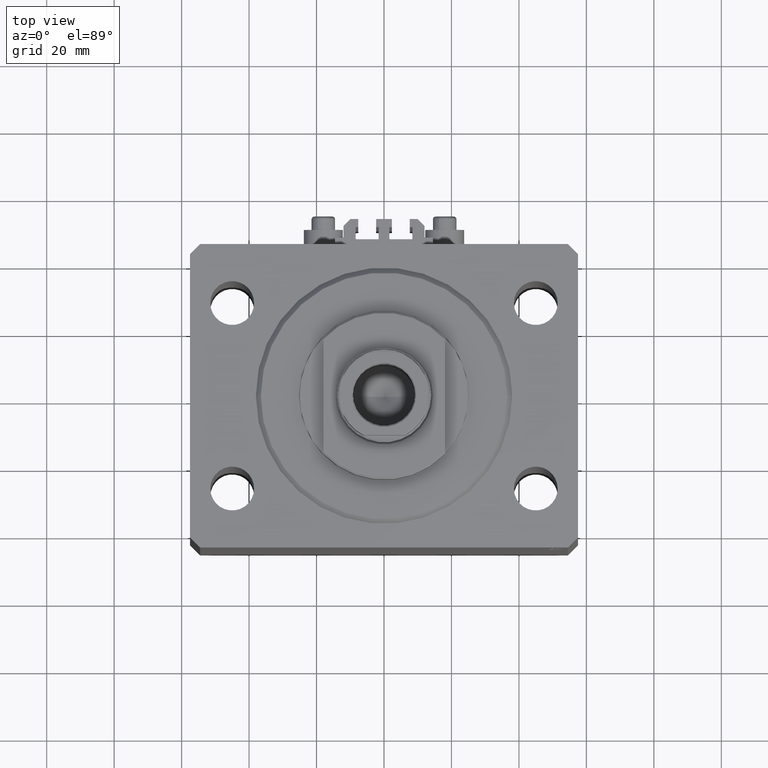
[diagram: clean part render]
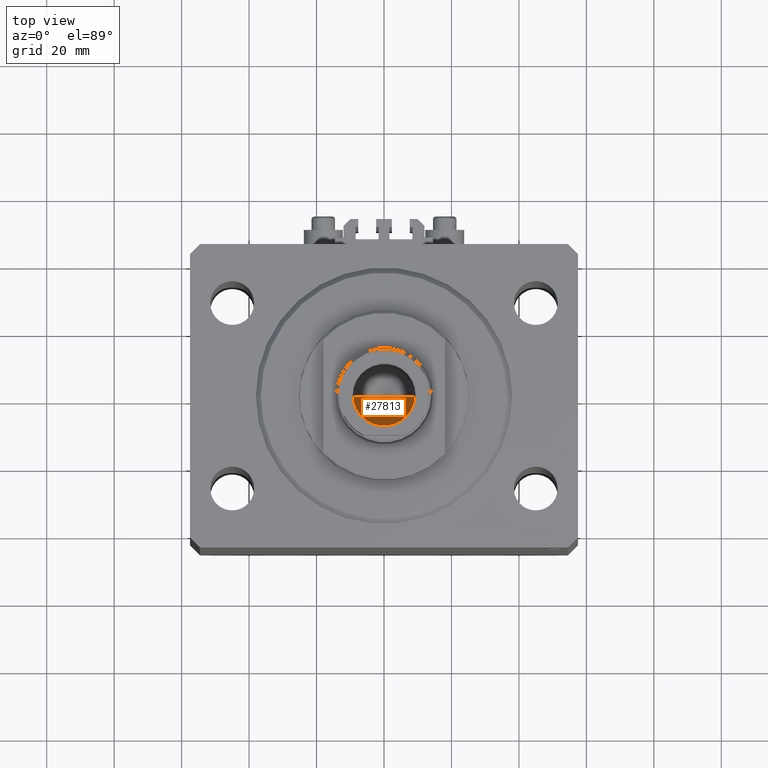
[diagram: same view with one face highlighted and labeled with its STEP entity id]
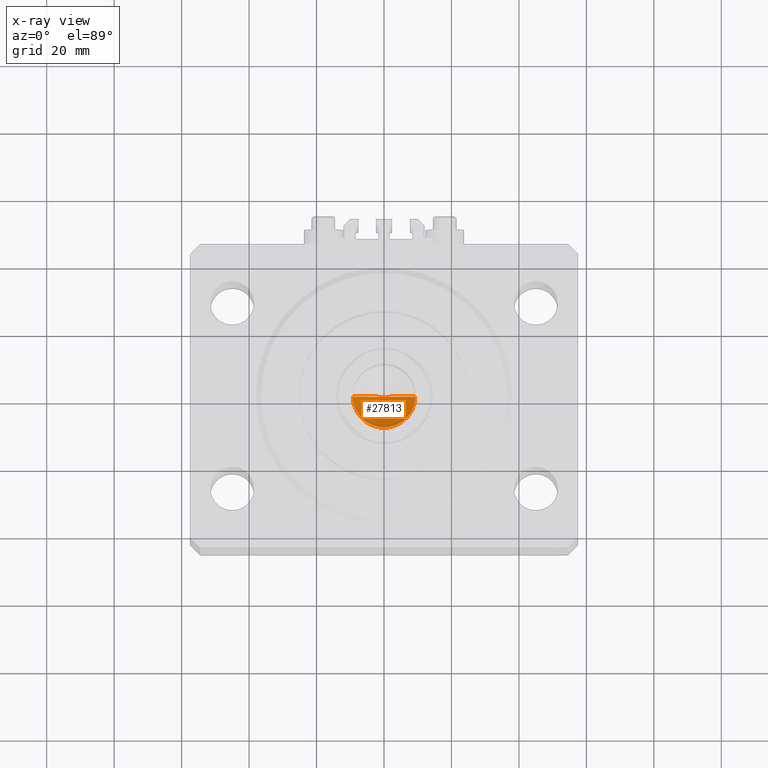
[diagram: x-ray of the same camera — body ghosted, the highlighted face saturated]
A machine part, top view. The second image highlights one B-rep face of the part: STEP entity #27813.
The next image is the same camera in x-ray: the body ghosted, the highlighted face saturated — about 8% of this face is hidden behind the body in this view.
In plain terms, the highlighted conical surface has half-angle 59 deg.
Its self-contained STEP definition (entity closure, byte-faithful):
#1298 = EDGE_CURVE ( 'NONE', #31323, #45242, #29685, .T. ) ;
#5644 = VECTOR ( 'NONE', #21853, 1000.000000000000000 ) ;
#6971 = VERTEX_POINT ( 'NONE', #25676 ) ;
#8230 = CARTESIAN_POINT ( 'NONE',  ( 0.000000000000000000, 0.000000000000000000, 102.0000000000000142 ) ) ;
#9929 = CARTESIAN_POINT ( 'NONE',  ( -1.046994375366439223E-14, 0.000000000000000000, 96.44203927399506426 ) ) ;
#9966 = CARTESIAN_POINT ( 'NONE',  ( 0.000000000000000000, 0.000000000000000000, 102.0000000000000142 ) ) ;
#10614 = ORIENTED_EDGE ( 'NONE', *, *, #42759, .T. ) ;
#12490 = CIRCLE ( 'NONE', #16324, 9.249999999999994671 ) ;
#16324 = AXIS2_PLACEMENT_3D ( 'NONE', #9966, #36264, #17152 ) ;
#16395 = EDGE_LOOP ( 'NONE', ( #41662, #10614, #38842 ) ) ;
#17152 = DIRECTION ( 'NONE',  ( 1.000000000000000000, 0.000000000000000000, 0.000000000000000000 ) ) ;
#19485 = DIRECTION ( 'NONE',  ( -0.000000000000000000, -0.000000000000000000, 1.000000000000000000 ) ) ;
#21853 = DIRECTION ( 'NONE',  ( -0.8571673007021117785, 1.049727191138617956E-16, 0.5150380749100550437 ) ) ;
#22595 = FACE_OUTER_BOUND ( 'NONE', #16395, .T. ) ;
#22824 = DIRECTION ( 'NONE',  ( 1.000000000000000000, 0.000000000000000000, 0.000000000000000000 ) ) ;
#25676 = CARTESIAN_POINT ( 'NONE',  ( -9.249999999999994671, 1.132798289211300909E-15, 102.0000000000000142 ) ) ;
#27813 = ADVANCED_FACE ( 'NONE', ( #22595 ), #42783, .F. ) ;
#29685 = LINE ( 'NONE', #33735, #34355 ) ;
#30385 = DIRECTION ( 'NONE',  ( 0.8571673007021117785, 0.000000000000000000, 0.5150380749100550437 ) ) ;
#31323 = VERTEX_POINT ( 'NONE', #9929 ) ;
#33330 = CARTESIAN_POINT ( 'NONE',  ( -9.249999999999994671, 1.132798289211300909E-15, 102.0000000000000142 ) ) ;
#33626 = AXIS2_PLACEMENT_3D ( 'NONE', #8230, #19485, #22824 ) ;
#33735 = CARTESIAN_POINT ( 'NONE',  ( 9.249999999999994671, 0.000000000000000000, 102.0000000000000142 ) ) ;
#34355 = VECTOR ( 'NONE', #30385, 1000.000000000000000 ) ;
#35886 = EDGE_CURVE ( 'NONE', #6971, #45242, #12490, .T. ) ;
#36264 = DIRECTION ( 'NONE',  ( -0.000000000000000000, -0.000000000000000000, 1.000000000000000000 ) ) ;
#38842 = ORIENTED_EDGE ( 'NONE', *, *, #35886, .T. ) ;
#41587 = CARTESIAN_POINT ( 'NONE',  ( 9.249999999999994671, 0.000000000000000000, 102.0000000000000142 ) ) ;
#41662 = ORIENTED_EDGE ( 'NONE', *, *, #1298, .F. ) ;
#42759 = EDGE_CURVE ( 'NONE', #31323, #6971, #43847, .T. ) ;
#42783 = CONICAL_SURFACE ( 'NONE', #33626, 9.249999999999994671, 1.029744258676653423 ) ;
#43847 = LINE ( 'NONE', #33330, #5644 ) ;
#45242 = VERTEX_POINT ( 'NONE', #41587 ) ;